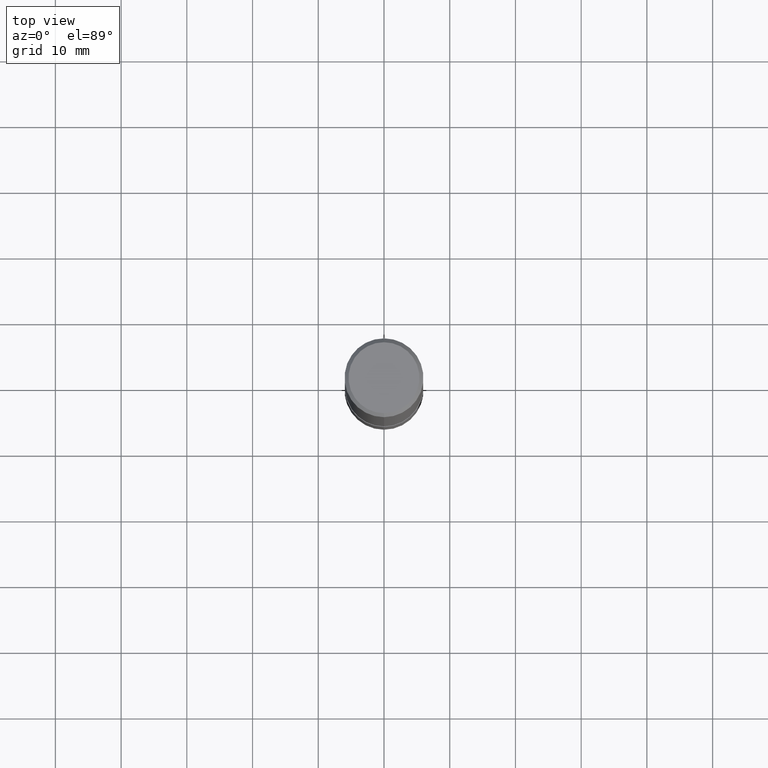
[diagram: clean part render]
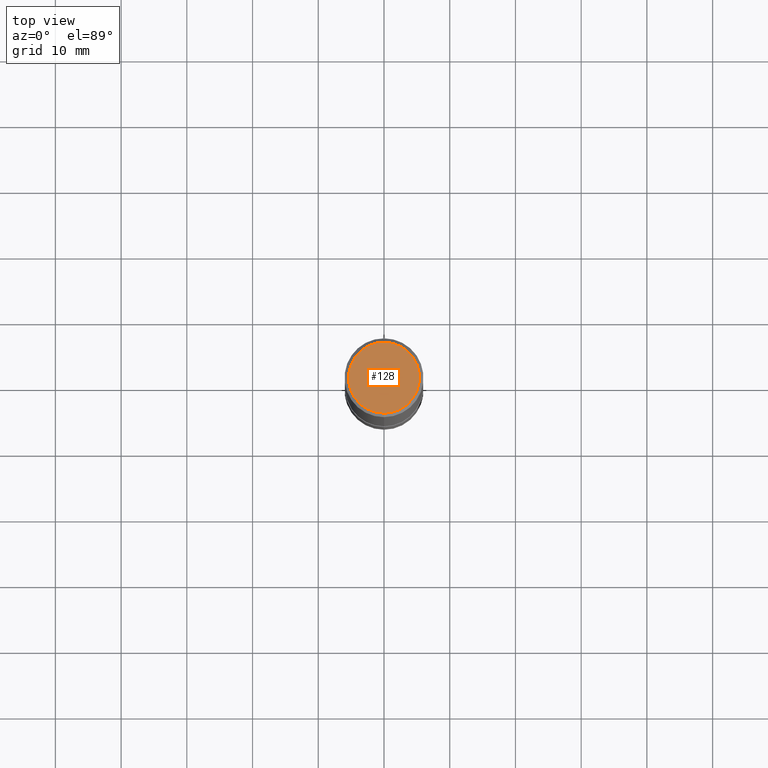
[diagram: same view with one face highlighted and labeled with its STEP entity id]
A machine part, top view. The second image highlights one B-rep face of the part: STEP entity #128.
In plain terms, the highlighted planar face has unit normal (-0, 0, 1).
Its self-contained STEP definition (entity closure, byte-faithful):
#128=ADVANCED_FACE('',(#255),#256,.T.);
#166=EDGE_CURVE('',#184,#174,#300,.T.);
#174=VERTEX_POINT('',#308);
#182=EDGE_CURVE('',#174,#184,#317,.T.);
#184=VERTEX_POINT('',#319);
#255=FACE_OUTER_BOUND('',#393,.T.);
#256=PLANE('',#394);
#300=CIRCLE('',#451,5.4);
#308=CARTESIAN_POINT('',(6.61287431064084E-016,-5.4,0.0));
#317=CIRCLE('',#472,5.4);
#319=CARTESIAN_POINT('',(0.0,5.4,0.0));
#393=EDGE_LOOP('',(#539,#540));
#394=AXIS2_PLACEMENT_3D('',#541,#542,#543);
#451=AXIS2_PLACEMENT_3D('',#602,#603,#604);
#472=AXIS2_PLACEMENT_3D('',#621,#622,#623);
#539=ORIENTED_EDGE('',*,*,#166,.F.);
#540=ORIENTED_EDGE('',*,*,#182,.F.);
#541=CARTESIAN_POINT('',(0.0,2.7,0.0));
#542=DIRECTION('',(-0.0,0.0,1.0));
#543=DIRECTION('',(0.0,-1.0,0.0));
#602=CARTESIAN_POINT('',(0.0,0.0,0.0));
#603=DIRECTION('',(0.0,0.0,-1.0));
#604=DIRECTION('',(0.0,1.0,0.0));
#621=CARTESIAN_POINT('',(0.0,0.0,0.0));
#622=DIRECTION('',(0.0,0.0,-1.0));
#623=DIRECTION('',(0.0,1.0,0.0));